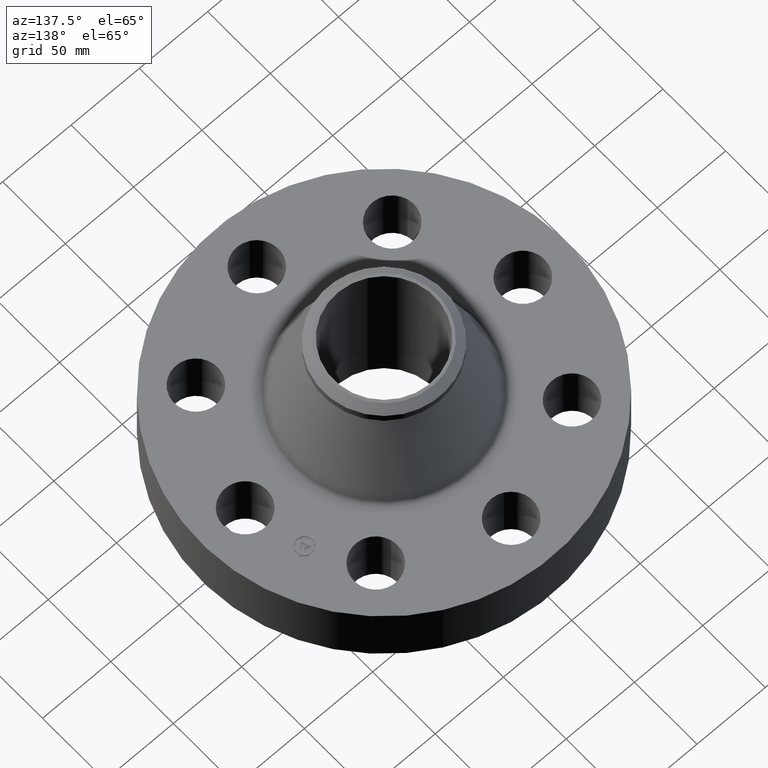
[diagram: clean part render]
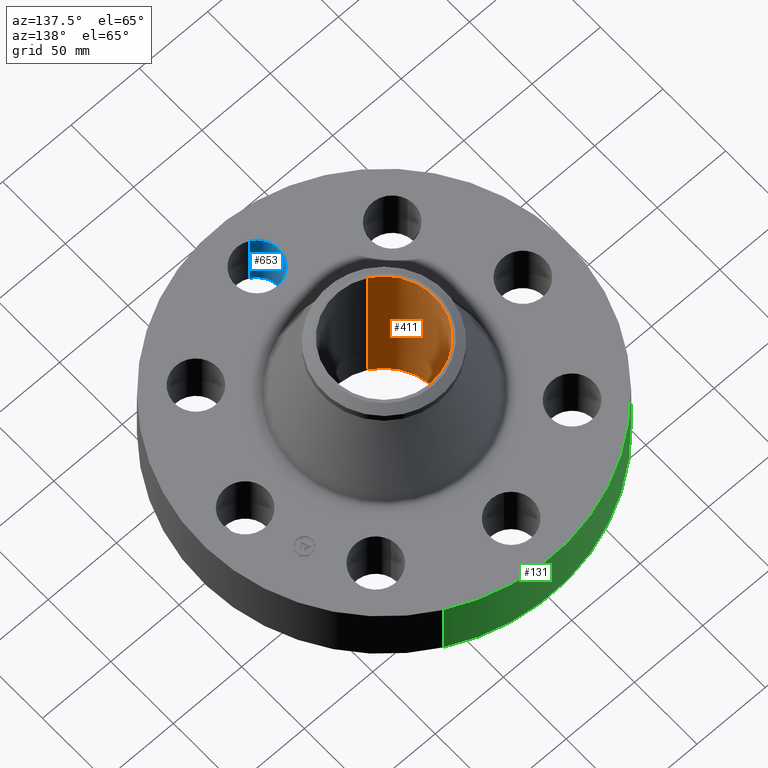
[diagram: same view with three faces highlighted in distinct colors, each labeled with its STEP entity id]
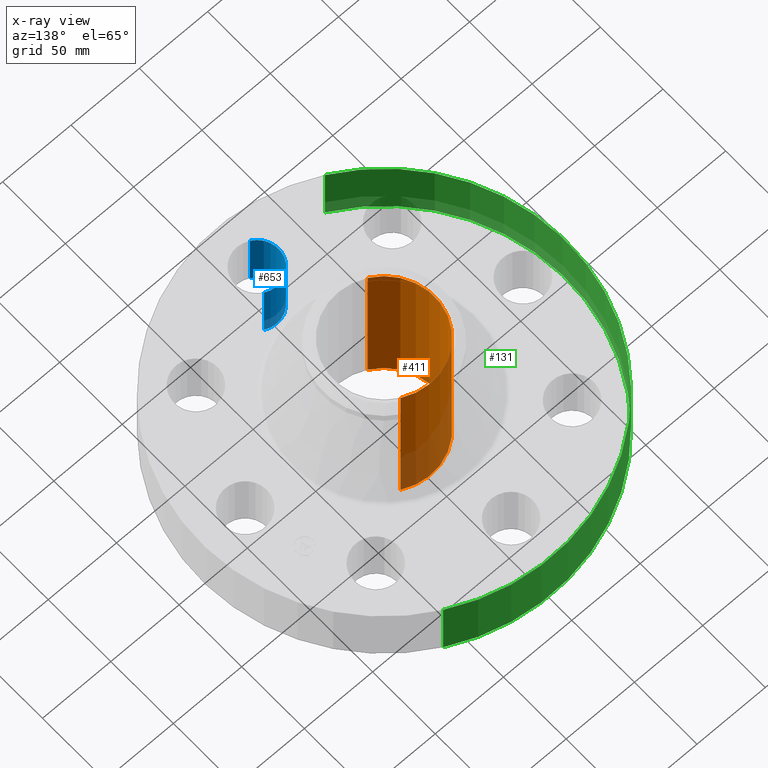
[diagram: x-ray of the same camera — body ghosted, the three highlighted faces saturated]
A machine part, auxiliary view with three faces highlighted in distinct colors.
The next image is the same camera in x-ray (body ghosted, the three faces saturated) — at least one of them is partly hidden behind the body in this view.
Their STEP definitions:

[orange] entity #411 — the highlighted cylindrical surface (partial cylindrical patch) has radius 36.83 mm, axis along (0, 0, -1).
#356=AXIS2_PLACEMENT_3D('Circle Axis2P3D',#354,#355,$) ;
#384=AXIS2_PLACEMENT_3D('Cylinder Axis2P3D',#381,#382,#383) ;
#395=AXIS2_PLACEMENT_3D('Circle Axis2P3D',#393,#394,$) ;
#354=CARTESIAN_POINT('Axis2P3D Location',(0.,0.,4.62000000002)) ;
#358=CARTESIAN_POINT('Vertex',(-0.695167030979,-1.27249471475,4.62000000002)) ;
#360=CARTESIAN_POINT('Vertex',(0.695167030979,1.27249471475,4.62000000002)) ;
#381=CARTESIAN_POINT('Axis2P3D Location',(0.,0.,2.31000000001)) ;
#386=CARTESIAN_POINT('Line Origine',(-0.695167030979,-1.27249471475,2.31000000001)) ;
#390=CARTESIAN_POINT('Vertex',(-0.695167030979,-1.27249471475,-8.39223703654E-015)) ;
#393=CARTESIAN_POINT('Axis2P3D Location',(0.,0.,-8.95171950564E-015)) ;
#397=CARTESIAN_POINT('Vertex',(0.695167030979,1.27249471475,-8.39223703654E-015)) ;
#400=CARTESIAN_POINT('Line Origine',(0.695167030979,1.27249471475,2.31000000001)) ;
#355=DIRECTION('Axis2P3D Direction',(0.,0.,-0.0393700787402)) ;
#382=DIRECTION('Axis2P3D Direction',(0.,0.,-0.0393700787402)) ;
#383=DIRECTION('Axis2P3D XDirection',(0.0188750212049,0.0345504945626,0.)) ;
#387=DIRECTION('Vector Direction',(0.,0.,-0.0393700787402)) ;
#394=DIRECTION('Axis2P3D Direction',(0.,0.,-0.0393700787402)) ;
#401=DIRECTION('Vector Direction',(0.,0.,-0.0393700787402)) ;
#388=VECTOR('Line Direction',#387,0.0393700787402) ;
#402=VECTOR('Line Direction',#401,0.0393700787402) ;
#406=ORIENTED_EDGE('',*,*,#362,.F.) ;
#407=ORIENTED_EDGE('',*,*,#392,.T.) ;
#408=ORIENTED_EDGE('',*,*,#399,.T.) ;
#409=ORIENTED_EDGE('',*,*,#404,.F.) ;
#411=ADVANCED_FACE('PartBody',(#410),#385,.F.) ;
#357=CIRCLE('generated circle',#356,1.45000000001) ;
#396=CIRCLE('generated circle',#395,1.45000000001) ;
#385=CYLINDRICAL_SURFACE('generated cylinder',#384,1.45000000001) ;
#362=EDGE_CURVE('',#359,#361,#357,.T.) ;
#392=EDGE_CURVE('',#359,#391,#389,.T.) ;
#399=EDGE_CURVE('',#391,#398,#396,.T.) ;
#404=EDGE_CURVE('',#361,#398,#403,.T.) ;
#405=EDGE_LOOP('',(#406,#407,#408,#409)) ;
#410=FACE_OUTER_BOUND('',#405,.T.) ;
#389=LINE('Line',#386,#388) ;
#403=LINE('Line',#400,#402) ;
#359=VERTEX_POINT('',#358) ;
#361=VERTEX_POINT('',#360) ;
#391=VERTEX_POINT('',#390) ;
#398=VERTEX_POINT('',#397) ;

[blue] entity #653 — the highlighted cylindrical surface (edge-blend (fillet) strip) has radius 15.875 mm, axis along (0, -0, -1).
#470=AXIS2_PLACEMENT_3D('Circle Axis2P3D',#468,#469,$) ;
#614=AXIS2_PLACEMENT_3D('Cylinder Axis2P3D',#611,#612,#613) ;
#644=AXIS2_PLACEMENT_3D('Circle Axis2P3D',#642,#643,$) ;
#463=CARTESIAN_POINT('Vertex',(0.299640961629,-3.45151089883,0.)) ;
#465=CARTESIAN_POINT('Vertex',(-0.299640961629,-4.5484891012,0.)) ;
#468=CARTESIAN_POINT('Axis2P3D Location',(-3.49676543189E-016,-4.00000000002,0.)) ;
#611=CARTESIAN_POINT('Axis2P3D Location',(-3.14553109272E-016,-4.00000000002,1.87606299213)) ;
#616=CARTESIAN_POINT('Line Origine',(0.299640961629,-3.45151089883,0.940000000004)) ;
#620=CARTESIAN_POINT('Vertex',(0.299640961629,-3.45151089883,1.88000000001)) ;
#623=CARTESIAN_POINT('Line Origine',(-0.299640961629,-4.5484891012,0.940000000004)) ;
#627=CARTESIAN_POINT('Vertex',(-0.299640961629,-4.5484891012,1.88000000001)) ;
#642=CARTESIAN_POINT('Axis2P3D Location',(-3.14553109272E-016,-4.00000000002,1.88000000001)) ;
#469=DIRECTION('Axis2P3D Direction',(0.,0.,-0.0393700787402)) ;
#612=DIRECTION('Axis2P3D Direction',(0.,-0.,-0.0393700787402)) ;
#613=DIRECTION('Axis2P3D XDirection',(-0.0188750212049,-0.0345504945626,0.)) ;
#617=DIRECTION('Vector Direction',(0.,0.,-0.0393700787402)) ;
#624=DIRECTION('Vector Direction',(0.,0.,-0.0393700787402)) ;
#643=DIRECTION('Axis2P3D Direction',(0.,-0.,-0.0393700787402)) ;
#618=VECTOR('Line Direction',#617,0.0393700787402) ;
#625=VECTOR('Line Direction',#624,0.0393700787402) ;
#648=ORIENTED_EDGE('',*,*,#629,.F.) ;
#649=ORIENTED_EDGE('',*,*,#472,.T.) ;
#650=ORIENTED_EDGE('',*,*,#622,.T.) ;
#651=ORIENTED_EDGE('',*,*,#646,.F.) ;
#653=ADVANCED_FACE('PartBody',(#652),#615,.F.) ;
#471=CIRCLE('generated circle',#470,0.625000000003) ;
#645=CIRCLE('generated circle',#644,0.625000000003) ;
#615=CYLINDRICAL_SURFACE('generated cylinder',#614,0.625000000003) ;
#472=EDGE_CURVE('',#466,#464,#471,.T.) ;
#622=EDGE_CURVE('',#464,#621,#619,.F.) ;
#629=EDGE_CURVE('',#466,#628,#626,.F.) ;
#646=EDGE_CURVE('',#628,#621,#645,.T.) ;
#647=EDGE_LOOP('',(#648,#649,#650,#651)) ;
#652=FACE_OUTER_BOUND('',#647,.T.) ;
#619=LINE('Line',#616,#618) ;
#626=LINE('Line',#623,#625) ;
#464=VERTEX_POINT('',#463) ;
#466=VERTEX_POINT('',#465) ;
#621=VERTEX_POINT('',#620) ;
#628=VERTEX_POINT('',#627) ;

[green] entity #131 — the highlighted cylindrical surface (partial cylindrical patch) has radius 133.35 mm, axis along (0, 0, -1).
#95=AXIS2_PLACEMENT_3D('Cylinder Axis2P3D',#92,#93,#94) ;
#99=AXIS2_PLACEMENT_3D('Circle Axis2P3D',#97,#98,$) ;
#115=AXIS2_PLACEMENT_3D('Circle Axis2P3D',#113,#114,$) ;
#92=CARTESIAN_POINT('Axis2P3D Location',(0.,0.,2.31000000001)) ;
#97=CARTESIAN_POINT('Axis2P3D Location',(0.,0.,5.59482469102E-016)) ;
#101=CARTESIAN_POINT('Vertex',(-2.51698407768,-4.60730844994,5.59482469102E-016)) ;
#103=CARTESIAN_POINT('Vertex',(2.51698407768,4.60730844994,5.59482469102E-016)) ;
#106=CARTESIAN_POINT('Line Origine',(-2.51698407768,-4.60730844994,0.940000000004)) ;
#110=CARTESIAN_POINT('Vertex',(-2.51698407768,-4.60730844994,1.88000000001)) ;
#113=CARTESIAN_POINT('Axis2P3D Location',(0.,0.,1.88000000001)) ;
#117=CARTESIAN_POINT('Vertex',(2.51698407768,4.60730844994,1.88000000001)) ;
#120=CARTESIAN_POINT('Line Origine',(2.51698407768,4.60730844994,0.940000000004)) ;
#93=DIRECTION('Axis2P3D Direction',(0.,0.,-0.0393700787402)) ;
#94=DIRECTION('Axis2P3D XDirection',(0.0188750212049,0.0345504945626,0.)) ;
#98=DIRECTION('Axis2P3D Direction',(0.,0.,-0.0393700787402)) ;
#107=DIRECTION('Vector Direction',(0.,0.,-0.0393700787402)) ;
#114=DIRECTION('Axis2P3D Direction',(0.,0.,-0.0393700787402)) ;
#121=DIRECTION('Vector Direction',(0.,0.,-0.0393700787402)) ;
#108=VECTOR('Line Direction',#107,0.0393700787402) ;
#122=VECTOR('Line Direction',#121,0.0393700787402) ;
#126=ORIENTED_EDGE('',*,*,#105,.F.) ;
#127=ORIENTED_EDGE('',*,*,#112,.T.) ;
#128=ORIENTED_EDGE('',*,*,#119,.T.) ;
#129=ORIENTED_EDGE('',*,*,#124,.F.) ;
#131=ADVANCED_FACE('PartBody',(#130),#96,.T.) ;
#100=CIRCLE('generated circle',#99,5.25000000002) ;
#116=CIRCLE('generated circle',#115,5.25000000002) ;
#96=CYLINDRICAL_SURFACE('generated cylinder',#95,5.25000000002) ;
#105=EDGE_CURVE('',#102,#104,#100,.T.) ;
#112=EDGE_CURVE('',#102,#111,#109,.F.) ;
#119=EDGE_CURVE('',#111,#118,#116,.T.) ;
#124=EDGE_CURVE('',#104,#118,#123,.F.) ;
#125=EDGE_LOOP('',(#126,#127,#128,#129)) ;
#130=FACE_OUTER_BOUND('',#125,.T.) ;
#109=LINE('Line',#106,#108) ;
#123=LINE('Line',#120,#122) ;
#102=VERTEX_POINT('',#101) ;
#104=VERTEX_POINT('',#103) ;
#111=VERTEX_POINT('',#110) ;
#118=VERTEX_POINT('',#117) ;